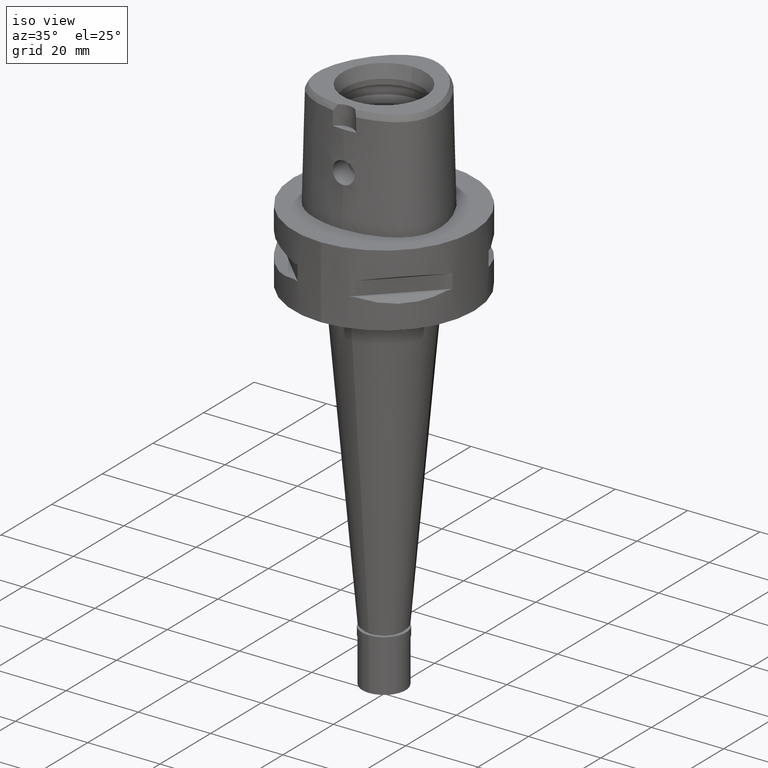
[diagram: clean part render]
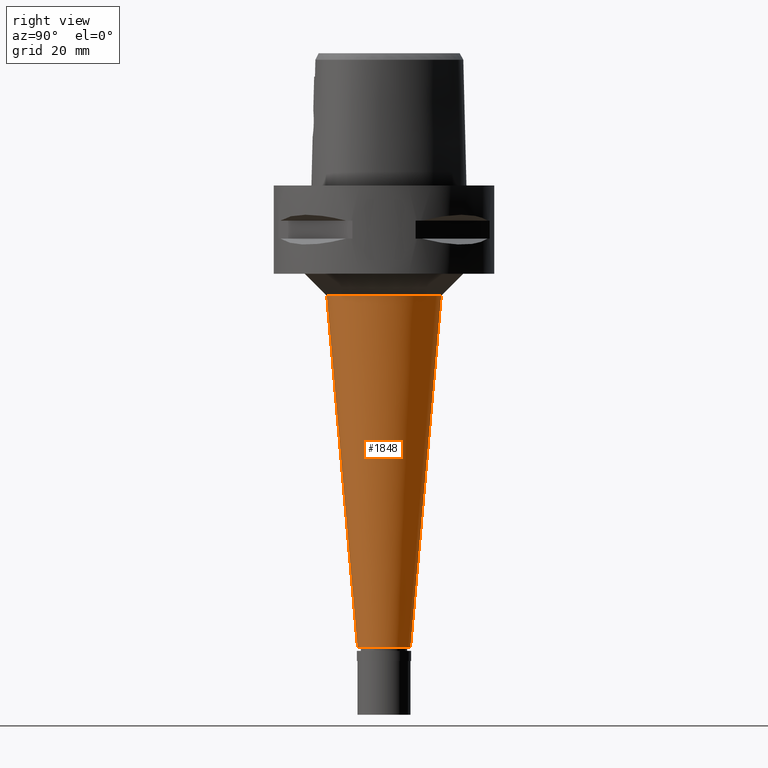
[diagram: tour spotlight — one face highlighted and labeled with its STEP entity id]
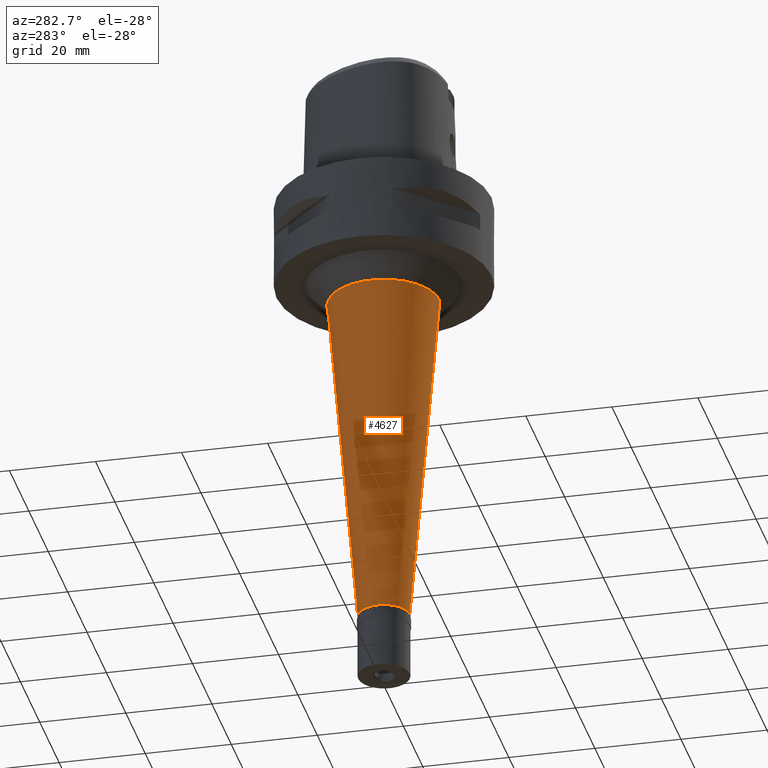
[diagram: tour spotlight — one face highlighted and labeled with its STEP entity id]
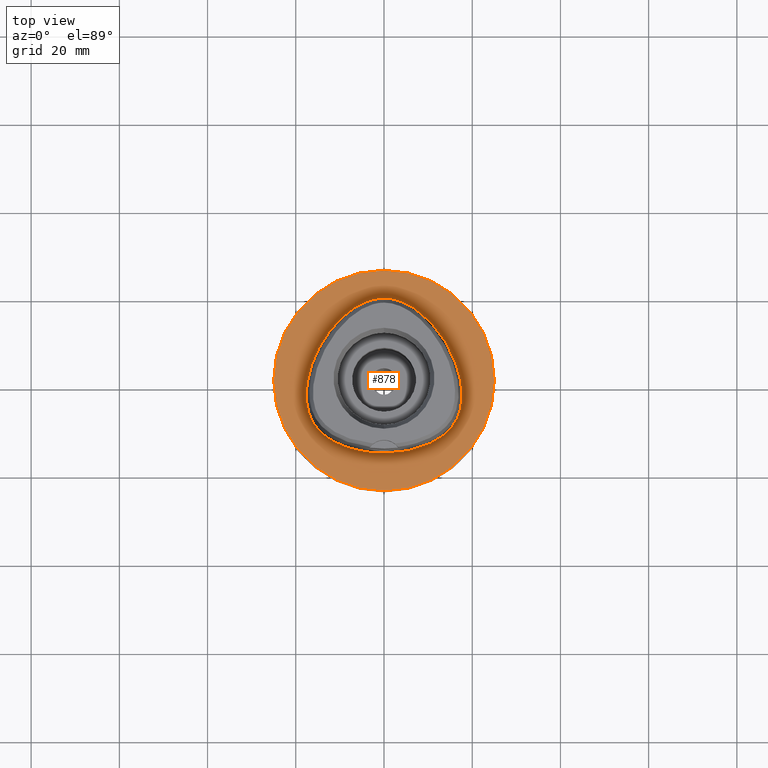
[diagram: tour spotlight — one face highlighted and labeled with its STEP entity id]
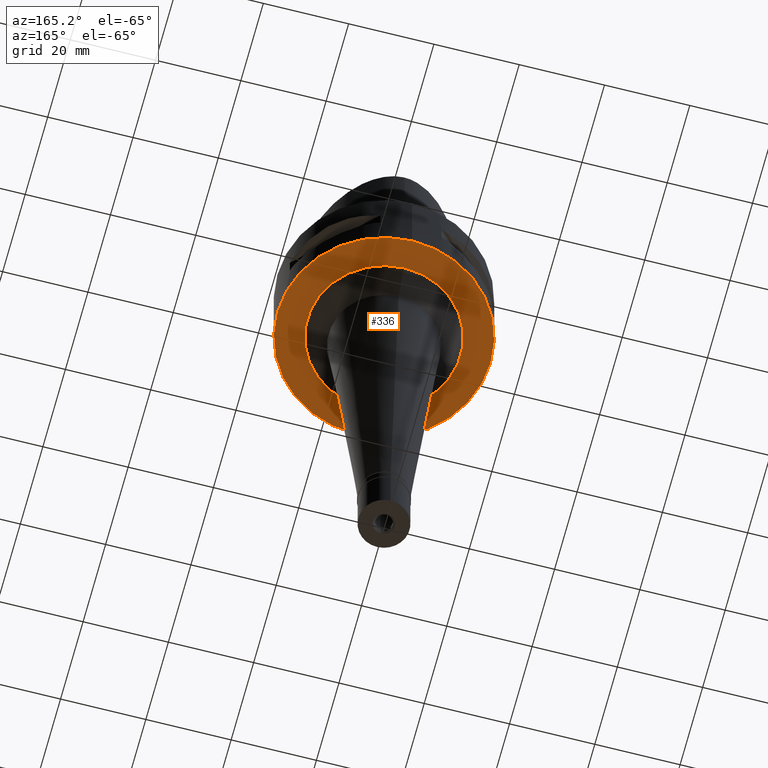
[diagram: tour spotlight — one face highlighted and labeled with its STEP entity id]
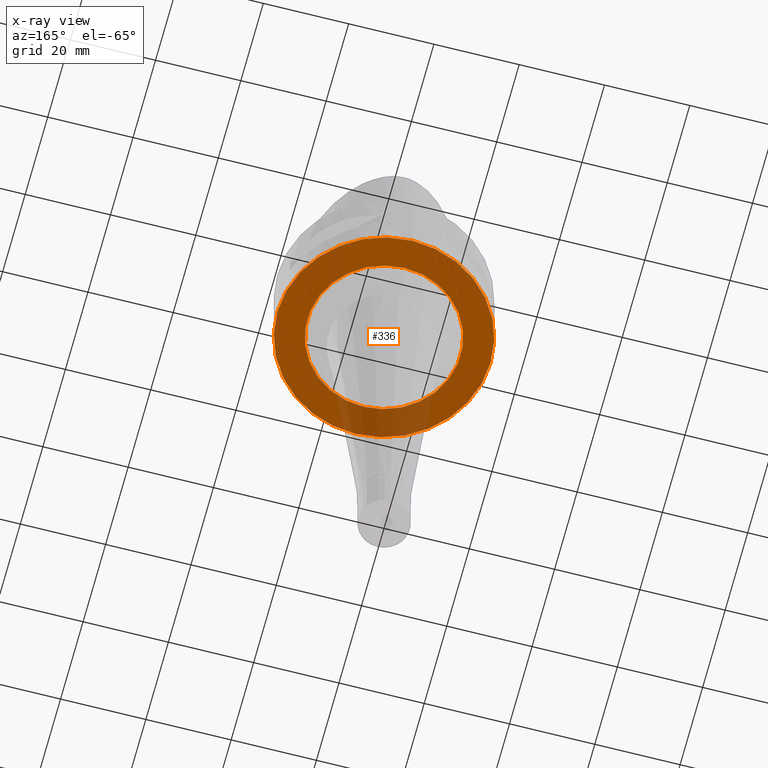
[diagram: x-ray of the same camera — body ghosted, this tour face saturated]
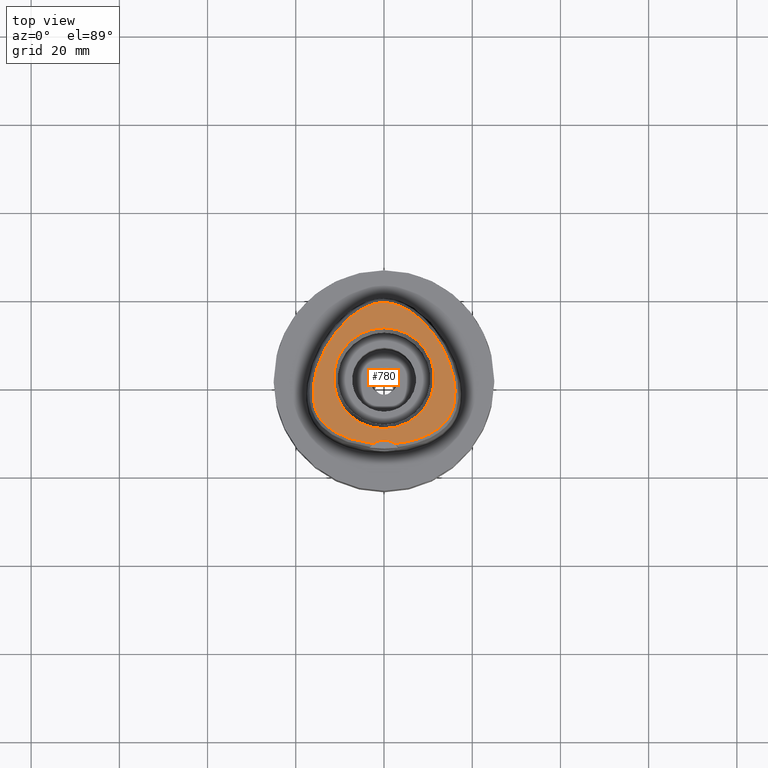
[diagram: tour spotlight — one face highlighted and labeled with its STEP entity id]
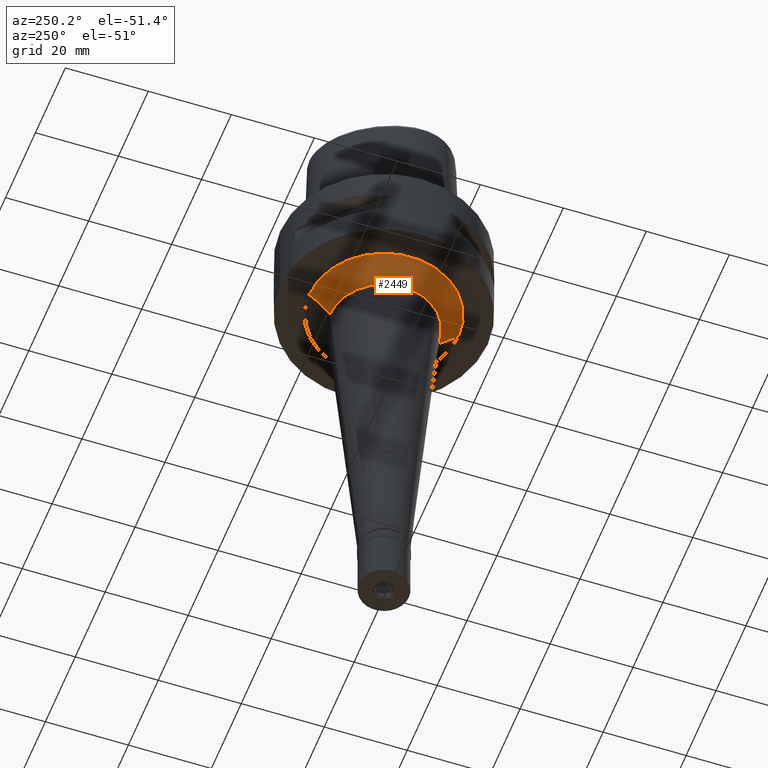
[diagram: tour spotlight — one face highlighted and labeled with its STEP entity id]
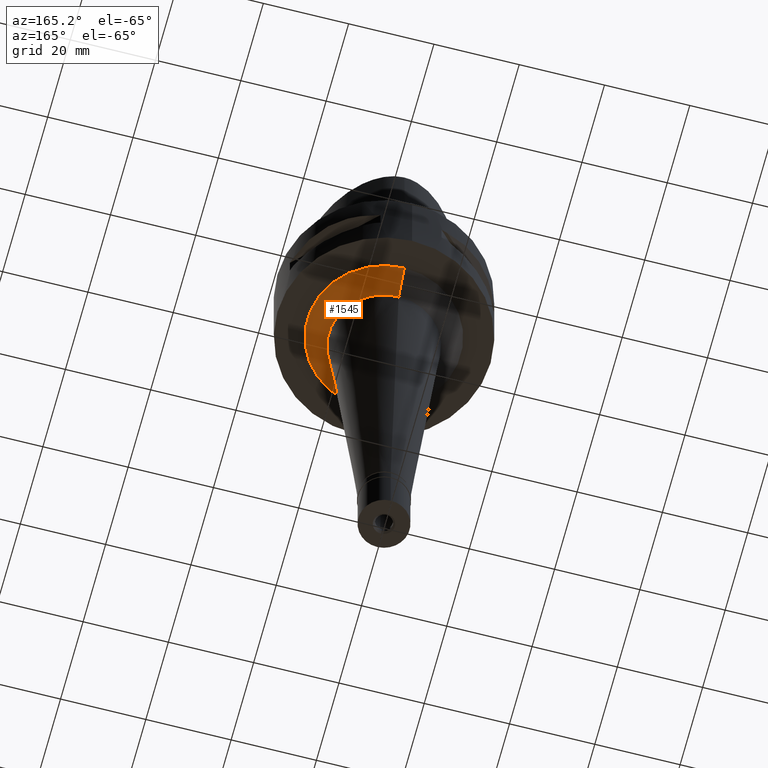
[diagram: tour spotlight — one face highlighted and labeled with its STEP entity id]
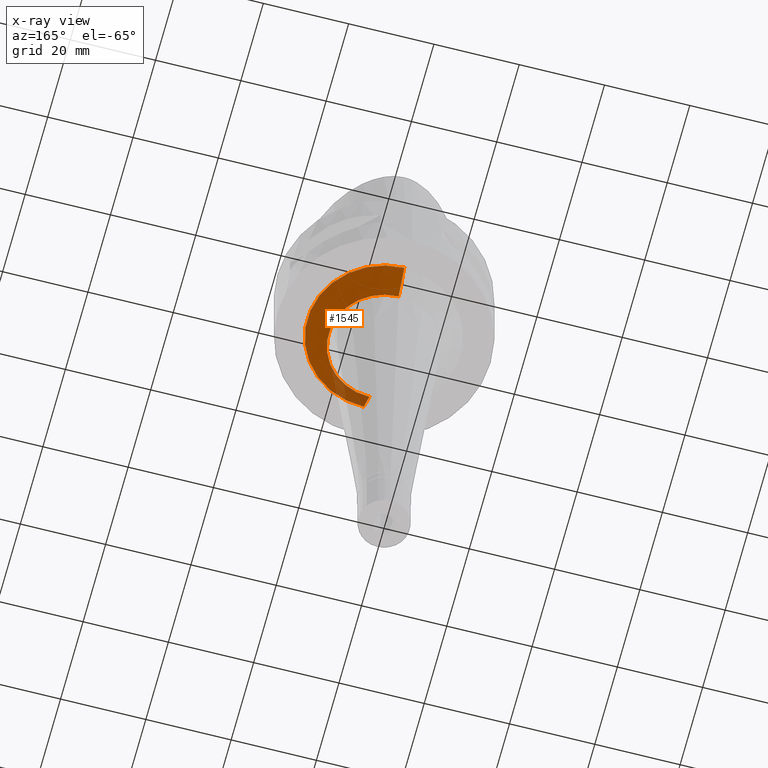
[diagram: x-ray of the same camera — body ghosted, this tour face saturated]
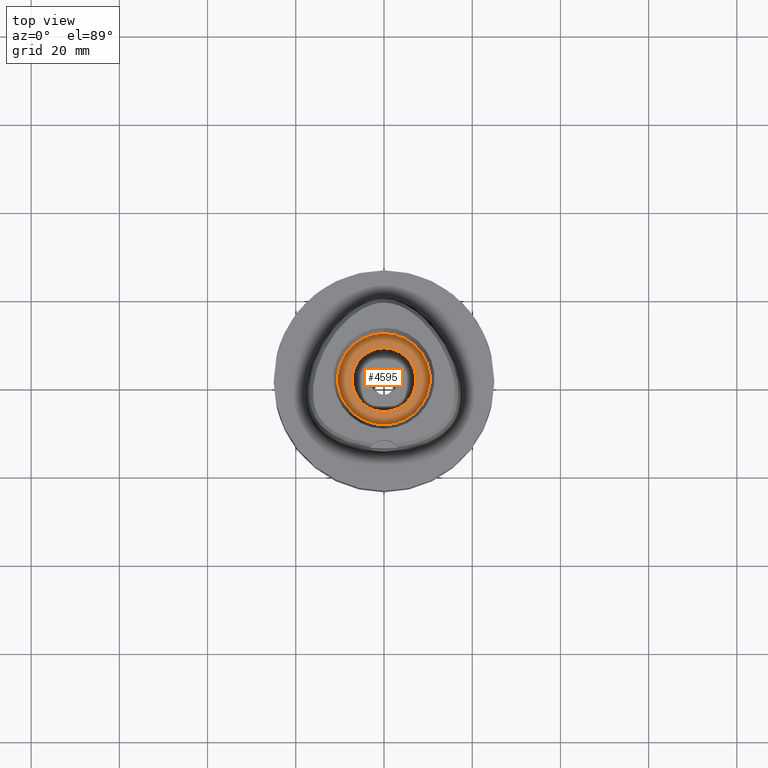
[diagram: tour spotlight — one face highlighted and labeled with its STEP entity id]
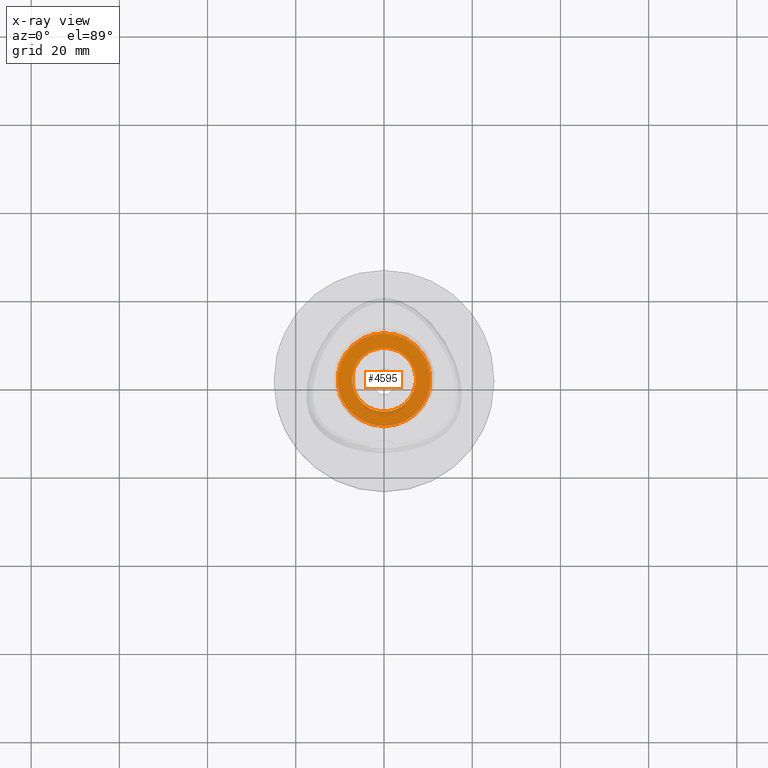
[diagram: x-ray of the same camera — body ghosted, this tour face saturated]
A machine part: a face-by-face anatomy tour. The part has 93 B-rep faces; the first image is the clean iso view, then the 8 largest visible faces are spotlighted one at a time (largest first), each with its STEP entity span.

Face 1 — right view, entity #1848. In plain terms, the highlighted conical surface has half-angle 5 deg.
Definition (entity closure, byte-faithful):
#159 = DIRECTION ( 'NONE',  ( 0.0000000000000000000, -1.000000000000000000, 0.0000000000000000000 ) ) ;
#301 = VECTOR ( 'NONE', #2188, 1000.000000000000000 ) ;
#485 = EDGE_CURVE ( 'NONE', #4478, #1376, #4431, .T. ) ;
#669 = VERTEX_POINT ( 'NONE', #3004 ) ;
#904 = ORIENTED_EDGE ( 'NONE', *, *, #3178, .F. ) ;
#1119 = AXIS2_PLACEMENT_3D ( 'NONE', #4689, #4671, #3247 ) ;
#1213 = FACE_OUTER_BOUND ( 'NONE', #4495, .T. ) ;
#1285 = ORIENTED_EDGE ( 'NONE', *, *, #3639, .F. ) ;
#1376 = VERTEX_POINT ( 'NONE', #2658 ) ;
#1802 = LINE ( 'NONE', #2504, #3945 ) ;
#1848 = ADVANCED_FACE ( 'NONE', ( #1213 ), #4131, .T. ) ;
#2141 = DIRECTION ( 'NONE',  ( 0.0000000000000000000, 0.08715574274767391716, -0.9961946980917442129 ) ) ;
#2188 = DIRECTION ( 'NONE',  ( 0.0000000000000000000, -0.08715574274767391716, -0.9961946980917442129 ) ) ;
#2246 = AXIS2_PLACEMENT_3D ( 'NONE', #4636, #3543, #159 ) ;
#2504 = CARTESIAN_POINT ( 'NONE',  ( 0.0000000000000000000, -12.98159534937000004, -25.00000000000000000 ) ) ;
#2658 = CARTESIAN_POINT ( 'NONE',  ( 0.0000000000000000000, 6.000000000000000000, -104.8000000000000114 ) ) ;
#2764 = DIRECTION ( 'NONE',  ( 0.0000000000000000000, 1.000000000000000000, 0.0000000000000000000 ) ) ;
#3004 = CARTESIAN_POINT ( 'NONE',  ( 0.0000000000000000000, 12.98159534937000004, -25.00000000000000000 ) ) ;
#3178 = EDGE_CURVE ( 'NONE', #4130, #669, #4390, .T. ) ;
#3247 = DIRECTION ( 'NONE',  ( 0.0000000000000000000, -1.000000000000000000, 0.0000000000000000000 ) ) ;
#3319 = ORIENTED_EDGE ( 'NONE', *, *, #3761, .T. ) ;
#3459 = CARTESIAN_POINT ( 'NONE',  ( 0.0000000000000000000, -6.000000000000000000, -104.8000000000000114 ) ) ;
#3543 = DIRECTION ( 'NONE',  ( 0.0000000000000000000, 0.0000000000000000000, 1.000000000000000000 ) ) ;
#3639 = EDGE_CURVE ( 'NONE', #669, #1376, #4766, .T. ) ;
#3761 = EDGE_CURVE ( 'NONE', #4130, #4478, #1802, .T. ) ;
#3891 = DIRECTION ( 'NONE',  ( 0.0000000000000000000, 0.0000000000000000000, 1.000000000000000000 ) ) ;
#3915 = CARTESIAN_POINT ( 'NONE',  ( 0.0000000000000000000, 0.0000000000000000000, -64.90000000000000568 ) ) ;
#3945 = VECTOR ( 'NONE', #2141, 1000.000000000000000 ) ;
#4053 = CARTESIAN_POINT ( 'NONE',  ( 0.0000000000000000000, 12.98159534937000004, -25.00000000000000000 ) ) ;
#4130 = VERTEX_POINT ( 'NONE', #4257 ) ;
#4131 = CONICAL_SURFACE ( 'NONE', #4664, 9.490797674683999929, 0.08726646259969973729 ) ;
#4257 = CARTESIAN_POINT ( 'NONE',  ( 0.0000000000000000000, -12.98159534937000004, -25.00000000000000000 ) ) ;
#4390 = CIRCLE ( 'NONE', #2246, 12.98159534937000004 ) ;
#4431 = CIRCLE ( 'NONE', #1119, 6.000000000000000000 ) ;
#4478 = VERTEX_POINT ( 'NONE', #3459 ) ;
#4495 = EDGE_LOOP ( 'NONE', ( #904, #3319, #4676, #1285 ) ) ;
#4636 = CARTESIAN_POINT ( 'NONE',  ( 0.0000000000000000000, 0.0000000000000000000, -25.00000000000000000 ) ) ;
#4664 = AXIS2_PLACEMENT_3D ( 'NONE', #3915, #3891, #2764 ) ;
#4671 = DIRECTION ( 'NONE',  ( 0.0000000000000000000, 0.0000000000000000000, 1.000000000000000000 ) ) ;
#4676 = ORIENTED_EDGE ( 'NONE', *, *, #485, .T. ) ;
#4689 = CARTESIAN_POINT ( 'NONE',  ( 0.0000000000000000000, 0.0000000000000000000, -104.8000000000000114 ) ) ;
#4766 = LINE ( 'NONE', #4053, #301 ) ;

Face 2 — auxiliary view, entity #4627. In plain terms, the highlighted conical surface has half-angle 5 deg.
Definition (entity closure, byte-faithful):
#44 = DIRECTION ( 'NONE',  ( 0.0000000000000000000, 1.000000000000000000, 0.0000000000000000000 ) ) ;
#61 = ORIENTED_EDGE ( 'NONE', *, *, #579, .T. ) ;
#296 = DIRECTION ( 'NONE',  ( 0.0000000000000000000, 0.0000000000000000000, -1.000000000000000000 ) ) ;
#301 = VECTOR ( 'NONE', #2188, 1000.000000000000000 ) ;
#437 = DIRECTION ( 'NONE',  ( 0.0000000000000000000, 0.0000000000000000000, 1.000000000000000000 ) ) ;
#579 = EDGE_CURVE ( 'NONE', #1376, #4478, #2435, .T. ) ;
#603 = ORIENTED_EDGE ( 'NONE', *, *, #3639, .T. ) ;
#669 = VERTEX_POINT ( 'NONE', #3004 ) ;
#725 = CIRCLE ( 'NONE', #4045, 12.98159534937000004 ) ;
#880 = FACE_OUTER_BOUND ( 'NONE', #3488, .T. ) ;
#1026 = AXIS2_PLACEMENT_3D ( 'NONE', #2908, #2209, #44 ) ;
#1376 = VERTEX_POINT ( 'NONE', #2658 ) ;
#1392 = DIRECTION ( 'NONE',  ( 0.0000000000000000000, -1.000000000000000000, 0.0000000000000000000 ) ) ;
#1517 = ORIENTED_EDGE ( 'NONE', *, *, #3761, .F. ) ;
#1673 = EDGE_CURVE ( 'NONE', #4130, #669, #725, .T. ) ;
#1741 = CARTESIAN_POINT ( 'NONE',  ( 0.0000000000000000000, 0.0000000000000000000, -25.00000000000000000 ) ) ;
#1802 = LINE ( 'NONE', #2504, #3945 ) ;
#2141 = DIRECTION ( 'NONE',  ( 0.0000000000000000000, 0.08715574274767391716, -0.9961946980917442129 ) ) ;
#2188 = DIRECTION ( 'NONE',  ( 0.0000000000000000000, -0.08715574274767391716, -0.9961946980917442129 ) ) ;
#2209 = DIRECTION ( 'NONE',  ( 0.0000000000000000000, 0.0000000000000000000, 1.000000000000000000 ) ) ;
#2356 = CARTESIAN_POINT ( 'NONE',  ( 0.0000000000000000000, 0.0000000000000000000, -64.90000000000000568 ) ) ;
#2435 = CIRCLE ( 'NONE', #1026, 6.000000000000000000 ) ;
#2504 = CARTESIAN_POINT ( 'NONE',  ( 0.0000000000000000000, -12.98159534937000004, -25.00000000000000000 ) ) ;
#2658 = CARTESIAN_POINT ( 'NONE',  ( 0.0000000000000000000, 6.000000000000000000, -104.8000000000000114 ) ) ;
#2908 = CARTESIAN_POINT ( 'NONE',  ( 0.0000000000000000000, 0.0000000000000000000, -104.8000000000000114 ) ) ;
#3004 = CARTESIAN_POINT ( 'NONE',  ( 0.0000000000000000000, 12.98159534937000004, -25.00000000000000000 ) ) ;
#3459 = CARTESIAN_POINT ( 'NONE',  ( 0.0000000000000000000, -6.000000000000000000, -104.8000000000000114 ) ) ;
#3488 = EDGE_LOOP ( 'NONE', ( #61, #1517, #3906, #603 ) ) ;
#3639 = EDGE_CURVE ( 'NONE', #669, #1376, #4766, .T. ) ;
#3761 = EDGE_CURVE ( 'NONE', #4130, #4478, #1802, .T. ) ;
#3823 = DIRECTION ( 'NONE',  ( 0.0000000000000000000, 1.000000000000000000, 0.0000000000000000000 ) ) ;
#3906 = ORIENTED_EDGE ( 'NONE', *, *, #1673, .T. ) ;
#3945 = VECTOR ( 'NONE', #2141, 1000.000000000000000 ) ;
#3950 = CONICAL_SURFACE ( 'NONE', #4488, 9.490797674683999929, 0.08726646259969973729 ) ;
#4045 = AXIS2_PLACEMENT_3D ( 'NONE', #1741, #296, #1392 ) ;
#4053 = CARTESIAN_POINT ( 'NONE',  ( 0.0000000000000000000, 12.98159534937000004, -25.00000000000000000 ) ) ;
#4130 = VERTEX_POINT ( 'NONE', #4257 ) ;
#4257 = CARTESIAN_POINT ( 'NONE',  ( 0.0000000000000000000, -12.98159534937000004, -25.00000000000000000 ) ) ;
#4478 = VERTEX_POINT ( 'NONE', #3459 ) ;
#4488 = AXIS2_PLACEMENT_3D ( 'NONE', #2356, #437, #3823 ) ;
#4627 = ADVANCED_FACE ( 'NONE', ( #880 ), #3950, .T. ) ;
#4766 = LINE ( 'NONE', #4053, #301 ) ;

Face 3 — top view, entity #878. In plain terms, the highlighted planar face has unit normal (0, 0, -1).
Definition (entity closure, byte-faithful):
#164 = CARTESIAN_POINT ( 'NONE',  ( 16.20602471963519164, -9.356552734374940172, 1.266890238549311931E-13 ) ) ;
#254 = CARTESIAN_POINT ( 'NONE',  ( 17.56373942933424104, -5.455996093750941078, 1.266890238549311931E-13 ) ) ;
#283 = DIRECTION ( 'NONE',  ( 0.0000000000000000000, 1.000000000000000000, 0.0000000000000000000 ) ) ;
#390 = CARTESIAN_POINT ( 'NONE',  ( -5.051093167672319417, -16.15562500055322559, -2.252703169944476891E-08 ) ) ;
#430 = CARTESIAN_POINT ( 'NONE',  ( 2.040572357694348860, 18.55015624999780854, 1.266890238549311931E-13 ) ) ;
#540 = DIRECTION ( 'NONE',  ( 0.0000000000000000000, 0.0000000000000000000, -1.000000000000000000 ) ) ;
#599 = VERTEX_POINT ( 'NONE', #782 ) ;
#620 = VERTEX_POINT ( 'NONE', #810 ) ;
#624 = CARTESIAN_POINT ( 'NONE',  ( 8.946741556185015654, -15.03902343750404569, 1.266890238549311931E-13 ) ) ;
#645 = ORIENTED_EDGE ( 'NONE', *, *, #1720, .F. ) ;
#671 = CARTESIAN_POINT ( 'NONE',  ( 1.683697722516158901, -16.45499999999859853, 1.266890238549311931E-13 ) ) ;
#782 = CARTESIAN_POINT ( 'NONE',  ( 6.327245226782000075E-11, 18.69499999997999851, 1.283047742124999982E-13 ) ) ;
#784 = CARTESIAN_POINT ( 'NONE',  ( -17.56373942988775738, -5.455996093829836191, -2.252703169944476891E-08 ) ) ;
#810 = CARTESIAN_POINT ( 'NONE',  ( 0.0000000000000000000, -25.00000000000000000, 0.0000000000000000000 ) ) ;
#860 = CARTESIAN_POINT ( 'NONE',  ( 0.0000000000000000000, 25.00000000000000000, 0.0000000000000000000 ) ) ;
#878 = ADVANCED_FACE ( 'NONE', ( #1241, #3054 ), #2305, .F. ) ;
#995 = CARTESIAN_POINT ( 'NONE',  ( 0.0000000000000000000, 1.295676313497999978E-14, 0.0000000000000000000 ) ) ;
#1043 = EDGE_CURVE ( 'NONE', #3849, #620, #2961, .T. ) ;
#1074 = DIRECTION ( 'NONE',  ( 0.0000000000000000000, -1.000000000000000000, 0.0000000000000000000 ) ) ;
#1095 = CARTESIAN_POINT ( 'NONE',  ( -0.6801907859079586727, 18.69500000056697431, -2.252703169944476891E-08 ) ) ;
#1124 = CARTESIAN_POINT ( 'NONE',  ( -16.51672824833155317, 3.703437500192405363, -2.252703169944476891E-08 ) ) ;
#1172 = CARTESIAN_POINT ( 'NONE',  ( -1.463759547442000055E-11, -16.45500000000000185, 1.294890121053999835E-13 ) ) ;
#1241 = FACE_OUTER_BOUND ( 'NONE', #4215, .T. ) ;
#1387 = CARTESIAN_POINT ( 'NONE',  ( 0.0000000000000000000, 1.295676313497999978E-14, 0.0000000000000000000 ) ) ;
#1399 = DIRECTION ( 'NONE',  ( 0.0000000000000000000, 0.0000000000000000000, -1.000000000000000000 ) ) ;
#1431 = ORIENTED_EDGE ( 'NONE', *, *, #1043, .F. ) ;
#1476 = CARTESIAN_POINT ( 'NONE',  ( -16.20602472013149509, -9.356552734657469728, -2.252703169944476891E-08 ) ) ;
#1492 = CARTESIAN_POINT ( 'NONE',  ( 16.51672824780402138, 3.703437499999786997, 1.266890238549311931E-13 ) ) ;
#1508 = CARTESIAN_POINT ( 'NONE',  ( -8.946741556378418281, -15.03902343803171426, -2.252703169944476891E-08 ) ) ;
#1526 = VERTEX_POINT ( 'NONE', #4170 ) ;
#1720 = EDGE_CURVE ( 'NONE', #1526, #599, #3925, .T. ) ;
#1820 = CARTESIAN_POINT ( 'NONE',  ( -2.040572357783139612, 18.55015625055378337, -2.252703169944476891E-08 ) ) ;
#1887 = B_SPLINE_CURVE_WITH_KNOTS ( 'NONE', 3,
 ( #2604, #1095, #1820, #3317, #2232, #3621, #2652, #1124, #3647, #4781, #784, #3696, #2909, #1476, #3723, #2957, #4070, #3368, #1508, #390, #4758, #1172 ),
 .UNSPECIFIED., .F., .F.,
 ( 4, 1, 1, 1, 1, 1, 1, 1, 1, 1, 1, 1, 1, 1, 1, 1, 1, 1, 1, 4 ),
 ( 0.0000000000000000000, 0.04166666666790999618, 0.08333333333452000447, 0.1666666666678000008, 0.2500000000009999779, 0.3333333333342000104, 0.4166666666675000186, 0.5000000000006999956, 0.5416666666673000119, 0.5833333333339000282, 0.6250000000005000445, 0.6458333333337999971, 0.6666666666671999808, 0.6875000000005000445, 0.7083333333336999660, 0.7500000000004000134, 0.7916666666670000296, 0.8333333333336000459, 0.9166666666668999985, 1.000000000000000000 ),
 .UNSPECIFIED. ) ;
#1942 = EDGE_LOOP ( 'NONE', ( #2235, #645 ) ) ;
#2012 = CARTESIAN_POINT ( 'NONE',  ( 14.78833380399962216, -11.28232910156654611, 1.266890238549311931E-13 ) ) ;
#2101 = CARTESIAN_POINT ( 'NONE',  ( 16.66912842139748818, -8.445800781250113687, 1.266890238549311931E-13 ) ) ;
#2113 = EDGE_CURVE ( 'NONE', #599, #1526, #1887, .T. ) ;
#2165 = CIRCLE ( 'NONE', #3400, 25.00000000000000000 ) ;
#2194 = CARTESIAN_POINT ( 'NONE',  ( 17.49754712306940618, -0.2285937500000930489, 1.266890238549311931E-13 ) ) ;
#2232 = CARTESIAN_POINT ( 'NONE',  ( -7.967839664576181313, 15.83070312544430536, -2.252703169944476891E-08 ) ) ;
#2235 = ORIENTED_EDGE ( 'NONE', *, *, #2113, .F. ) ;
#2295 = CARTESIAN_POINT ( 'NONE',  ( 4.728927206815265905, 17.73480468749866290, 1.266890238549311931E-13 ) ) ;
#2305 = PLANE ( 'NONE',  #3198 ) ;
#2359 = CARTESIAN_POINT ( 'NONE',  ( 0.0000000000000000000, 1.224646799146999965E-14, 0.0000000000000000000 ) ) ;
#2395 = ORIENTED_EDGE ( 'NONE', *, *, #3700, .F. ) ;
#2485 = CARTESIAN_POINT ( 'NONE',  ( 5.051093167571571563, -16.15562500000254431, 1.266890238549311931E-13 ) ) ;
#2604 = CARTESIAN_POINT ( 'NONE',  ( 6.327245226782000075E-11, 18.69499999997999851, 1.283047742124999982E-13 ) ) ;
#2636 = CARTESIAN_POINT ( 'NONE',  ( 17.71143735561749111, -3.269218750000518980, 1.266890238549311931E-13 ) ) ;
#2652 = CARTESIAN_POINT ( 'NONE',  ( -14.38008119738573143, 8.302343750282300761, -2.252703169944476891E-08 ) ) ;
#2664 = CARTESIAN_POINT ( 'NONE',  ( 14.38008119689788167, 8.302343749999957723, 1.266890238549311931E-13 ) ) ;
#2909 = CARTESIAN_POINT ( 'NONE',  ( -16.66912842190886224, -8.445800781479288588, -2.252703169944476891E-08 ) ) ;
#2957 = CARTESIAN_POINT ( 'NONE',  ( -14.78833380441265177, -11.28232910194992478, -2.252703169944476891E-08 ) ) ;
#2961 = CIRCLE ( 'NONE', #3811, 25.00000000000000000 ) ;
#2970 = CARTESIAN_POINT ( 'NONE',  ( 11.46563508023672640, 12.45218749999961005, 1.266890238549311931E-13 ) ) ;
#3054 = FACE_BOUND ( 'NONE', #1942, .T. ) ;
#3198 = AXIS2_PLACEMENT_3D ( 'NONE', #2359, #540, #4217 ) ;
#3232 = DIRECTION ( 'NONE',  ( 0.0000000000000000000, 0.0000000000000000000, -1.000000000000000000 ) ) ;
#3317 = CARTESIAN_POINT ( 'NONE',  ( -4.728927207058283955, 17.73480468801015064, -2.252703169944476891E-08 ) ) ;
#3368 = CARTESIAN_POINT ( 'NONE',  ( -11.68694516611753009, -13.70394531299874963, -2.252703169944476891E-08 ) ) ;
#3377 = CARTESIAN_POINT ( 'NONE',  ( 6.327245226782000075E-11, 18.69499999997999851, 1.283047742124999982E-13 ) ) ;
#3400 = AXIS2_PLACEMENT_3D ( 'NONE', #1387, #3232, #1074 ) ;
#3483 = CARTESIAN_POINT ( 'NONE',  ( 15.64884224256346812, -10.21298828125385505, 1.266890238549311931E-13 ) ) ;
#3565 = CARTESIAN_POINT ( 'NONE',  ( 17.16495051780308145, -7.165908203125037623, 1.266890238549311931E-13 ) ) ;
#3621 = CARTESIAN_POINT ( 'NONE',  ( -11.46563508066128989, 12.45218750037066258, -2.252703169944476891E-08 ) ) ;
#3647 = CARTESIAN_POINT ( 'NONE',  ( -17.49754712363003506, -0.2285937499011347351, -2.252703169944476891E-08 ) ) ;
#3696 = CARTESIAN_POINT ( 'NONE',  ( -17.16495051834907315, -7.165908203285286326, -2.252703169944476891E-08 ) ) ;
#3700 = EDGE_CURVE ( 'NONE', #620, #3849, #2165, .T. ) ;
#3710 = CARTESIAN_POINT ( 'NONE',  ( 0.6801907859354098251, 18.69499999999559847, 1.266890238549311931E-13 ) ) ;
#3723 = CARTESIAN_POINT ( 'NONE',  ( -15.64884224301975024, -10.21298828158365524, -2.252703169944476891E-08 ) ) ;
#3811 = AXIS2_PLACEMENT_3D ( 'NONE', #995, #1399, #283 ) ;
#3849 = VERTEX_POINT ( 'NONE', #860 ) ;
#3850 = CARTESIAN_POINT ( 'NONE',  ( 13.50690093480192822, -12.48264648437981528, 1.266890238549311931E-13 ) ) ;
#3925 = B_SPLINE_CURVE_WITH_KNOTS ( 'NONE', 3,
 ( #3981, #671, #2485, #624, #4720, #3850, #2012, #3483, #164, #2101, #3565, #254, #2636, #2194, #1492, #2664, #2970, #4440, #2295, #430, #3710, #3377 ),
 .UNSPECIFIED., .F., .F.,
 ( 4, 1, 1, 1, 1, 1, 1, 1, 1, 1, 1, 1, 1, 1, 1, 1, 1, 1, 1, 4 ),
 ( 0.0000000000000000000, 0.08333333333346000515, 0.1666666666667000196, 0.2083333333333000081, 0.2499999999998999967, 0.2916666666666000163, 0.3124999999997999933, 0.3333333333331000015, 0.3541666666665000407, 0.3749999999996999622, 0.4166666666664000096, 0.4583333333328999948, 0.4999999999995999866, 0.5833333333328000192, 0.6666666666660999718, 0.7499999999993000044, 0.8333333333324000058, 0.9166666666657000695, 0.9583333333322999747, 1.000000000000000000 ),
 .UNSPECIFIED. ) ;
#3981 = CARTESIAN_POINT ( 'NONE',  ( -1.463759547442000055E-11, -16.45500000000000185, 1.294890121053999835E-13 ) ) ;
#4070 = CARTESIAN_POINT ( 'NONE',  ( -13.50690093514876011, -12.48264648482576433, -2.252703169944476891E-08 ) ) ;
#4170 = CARTESIAN_POINT ( 'NONE',  ( -1.463759547442000055E-11, -16.45500000000000185, 1.294890121053999835E-13 ) ) ;
#4215 = EDGE_LOOP ( 'NONE', ( #1431, #2395 ) ) ;
#4217 = DIRECTION ( 'NONE',  ( 0.0000000000000000000, -1.000000000000000000, 0.0000000000000000000 ) ) ;
#4440 = CARTESIAN_POINT ( 'NONE',  ( 7.967839664224537266, 15.83070312499691035, 1.266890238549311931E-13 ) ) ;
#4720 = CARTESIAN_POINT ( 'NONE',  ( 11.68694516583672716, -13.70394531250057213, 1.266890238549311931E-13 ) ) ;
#4758 = CARTESIAN_POINT ( 'NONE',  ( -1.683697722561884103, -16.45500000056451384, -2.252703169944476891E-08 ) ) ;
#4781 = CARTESIAN_POINT ( 'NONE',  ( -17.71143735617546255, -3.269218749996134932, -2.252703169944476891E-08 ) ) ;

Face 4 — auxiliary view, entity #336. An x-ray twin of the same camera follows (body ghosted, this face saturated) — the face is partly hidden behind the body. In plain terms, the highlighted planar face has unit normal (0, 0, -1).
Definition (entity closure, byte-faithful):
#42 = CARTESIAN_POINT ( 'NONE',  ( 0.0000000000000000000, 1.295676313497999978E-14, -20.00000000000000000 ) ) ;
#212 = ORIENTED_EDGE ( 'NONE', *, *, #4270, .F. ) ;
#336 = ADVANCED_FACE ( 'NONE', ( #839, #1405 ), #2441, .T. ) ;
#366 = EDGE_CURVE ( 'NONE', #1269, #4712, #1739, .T. ) ;
#409 = CARTESIAN_POINT ( 'NONE',  ( 0.0000000000000000000, 17.98159534937000004, -20.00000000000000000 ) ) ;
#471 = AXIS2_PLACEMENT_3D ( 'NONE', #42, #732, #3268 ) ;
#615 = CARTESIAN_POINT ( 'NONE',  ( 0.0000000000000000000, 0.0000000000000000000, -20.00000000000000000 ) ) ;
#732 = DIRECTION ( 'NONE',  ( 0.0000000000000000000, 0.0000000000000000000, 1.000000000000000000 ) ) ;
#807 = CARTESIAN_POINT ( 'NONE',  ( 0.0000000000000000000, 1.295676313497999978E-14, -20.00000000000000000 ) ) ;
#839 = FACE_OUTER_BOUND ( 'NONE', #3493, .T. ) ;
#896 = AXIS2_PLACEMENT_3D ( 'NONE', #615, #2884, #2157 ) ;
#948 = DIRECTION ( 'NONE',  ( 0.0000000000000000000, 0.0000000000000000000, -1.000000000000000000 ) ) ;
#1014 = AXIS2_PLACEMENT_3D ( 'NONE', #807, #4596, #3076 ) ;
#1020 = DIRECTION ( 'NONE',  ( 0.0000000000000000000, 1.000000000000000000, 0.0000000000000000000 ) ) ;
#1028 = VERTEX_POINT ( 'NONE', #2132 ) ;
#1269 = VERTEX_POINT ( 'NONE', #409 ) ;
#1405 = FACE_BOUND ( 'NONE', #4543, .T. ) ;
#1691 = CARTESIAN_POINT ( 'NONE',  ( 0.0000000000000000000, 0.0000000000000000000, -20.00000000000000000 ) ) ;
#1739 = CIRCLE ( 'NONE', #3581, 17.98159534937000004 ) ;
#1935 = EDGE_CURVE ( 'NONE', #4712, #1269, #4589, .T. ) ;
#2046 = AXIS2_PLACEMENT_3D ( 'NONE', #1691, #948, #4614 ) ;
#2099 = CIRCLE ( 'NONE', #1014, 25.00000000000000000 ) ;
#2132 = CARTESIAN_POINT ( 'NONE',  ( 0.0000000000000000000, -25.00000000000000000, -20.00000000000000000 ) ) ;
#2157 = DIRECTION ( 'NONE',  ( 0.0000000000000000000, -1.000000000000000000, 0.0000000000000000000 ) ) ;
#2441 = PLANE ( 'NONE',  #896 ) ;
#2451 = ORIENTED_EDGE ( 'NONE', *, *, #1935, .F. ) ;
#2536 = CARTESIAN_POINT ( 'NONE',  ( 0.0000000000000000000, -17.98159534937000004, -20.00000000000000000 ) ) ;
#2712 = VERTEX_POINT ( 'NONE', #4729 ) ;
#2884 = DIRECTION ( 'NONE',  ( 0.0000000000000000000, 0.0000000000000000000, -1.000000000000000000 ) ) ;
#3076 = DIRECTION ( 'NONE',  ( 0.0000000000000000000, -1.000000000000000000, 0.0000000000000000000 ) ) ;
#3268 = DIRECTION ( 'NONE',  ( 0.0000000000000000000, 1.000000000000000000, 0.0000000000000000000 ) ) ;
#3298 = ORIENTED_EDGE ( 'NONE', *, *, #4472, .F. ) ;
#3485 = CIRCLE ( 'NONE', #471, 25.00000000000000000 ) ;
#3493 = EDGE_LOOP ( 'NONE', ( #212, #3298 ) ) ;
#3581 = AXIS2_PLACEMENT_3D ( 'NONE', #3973, #3927, #1020 ) ;
#3927 = DIRECTION ( 'NONE',  ( 0.0000000000000000000, 0.0000000000000000000, -1.000000000000000000 ) ) ;
#3973 = CARTESIAN_POINT ( 'NONE',  ( 0.0000000000000000000, 0.0000000000000000000, -20.00000000000000000 ) ) ;
#4270 = EDGE_CURVE ( 'NONE', #2712, #1028, #3485, .T. ) ;
#4472 = EDGE_CURVE ( 'NONE', #1028, #2712, #2099, .T. ) ;
#4521 = ORIENTED_EDGE ( 'NONE', *, *, #366, .F. ) ;
#4543 = EDGE_LOOP ( 'NONE', ( #4521, #2451 ) ) ;
#4589 = CIRCLE ( 'NONE', #2046, 17.98159534937000004 ) ;
#4596 = DIRECTION ( 'NONE',  ( 0.0000000000000000000, 0.0000000000000000000, 1.000000000000000000 ) ) ;
#4614 = DIRECTION ( 'NONE',  ( 0.0000000000000000000, -1.000000000000000000, 0.0000000000000000000 ) ) ;
#4712 = VERTEX_POINT ( 'NONE', #2536 ) ;
#4729 = CARTESIAN_POINT ( 'NONE',  ( 0.0000000000000000000, 25.00000000000000000, -20.00000000000000000 ) ) ;

Face 5 — top view, entity #780. In plain terms, the highlighted planar face has unit normal (0, 0, 1).
Definition (entity closure, byte-faithful):
#4 = CARTESIAN_POINT ( 'NONE',  ( -9.750168658358866480, -12.92810664733624471, 29.99999999999975486 ) ) ;
#9 = CARTESIAN_POINT ( 'NONE',  ( 15.51702143705434445, -7.148634146070255824, 29.99999999999529976 ) ) ;
#37 = CARTESIAN_POINT ( 'NONE',  ( -6.303691439121000273E-11, 17.15328888647999861, 30.00000000000000000 ) ) ;
#39 = CARTESIAN_POINT ( 'NONE',  ( 3.078265684543895819, 16.60532678263224682, 29.99999999999934630 ) ) ;
#80 = CARTESIAN_POINT ( 'NONE',  ( -0.5679008307149224777, 17.14013367087309447, 29.99999999999387512 ) ) ;
#96 = CARTESIAN_POINT ( 'NONE',  ( -6.303691439121000273E-11, 17.15328888647999861, 30.00000000000000000 ) ) ;
#129 = CARTESIAN_POINT ( 'NONE',  ( -1.772880577021780812, 16.97196055715948049, 29.99999999999553779 ) ) ;
#165 = DIRECTION ( 'NONE',  ( 1.000000000000000000, 0.0000000000000000000, 0.0000000000000000000 ) ) ;
#194 = VERTEX_POINT ( 'NONE', #1591 ) ;
#221 = CARTESIAN_POINT ( 'NONE',  ( 0.0000000000000000000, 1.570614979474999723E-14, 30.00000000000000000 ) ) ;
#260 = AXIS2_PLACEMENT_3D ( 'NONE', #221, #661, #1045 ) ;
#280 = CARTESIAN_POINT ( 'NONE',  ( -15.71065119878993421, -6.536303815289310926, 29.99999999999440092 ) ) ;
#299 = CARTESIAN_POINT ( 'NONE',  ( -13.18915979441350217, -10.65722997876278733, 29.99999999999581846 ) ) ;
#303 = CARTESIAN_POINT ( 'NONE',  ( 13.38374903490799639, 6.636915464739649551, 30.00000000000790124 ) ) ;
#324 = CARTESIAN_POINT ( 'NONE',  ( -13.66338899148611574, -10.18351204678590172, 29.99999999999864997 ) ) ;
#354 = CARTESIAN_POINT ( 'NONE',  ( -11.92713521269310917, 9.060544494663155035, 29.99999999999641886 ) ) ;
#357 = CARTESIAN_POINT ( 'NONE',  ( 15.68929135223772953, 0.4919393172820291649, 29.99999999999933920 ) ) ;
#360 = EDGE_CURVE ( 'NONE', #664, #194, #3432, .T. ) ;
#371 = CARTESIAN_POINT ( 'NONE',  ( 12.04928217776346422, -11.59002493206811124, 29.99999999999876721 ) ) ;
#379 = CARTESIAN_POINT ( 'NONE',  ( -16.12543283908635772, -3.535877041748166416, 30.00000000000415668 ) ) ;
#432 = CARTESIAN_POINT ( 'NONE',  ( -0.1909045559980127038, 17.15328888648249972, 29.99999999999878142 ) ) ;
#507 = B_SPLINE_CURVE_WITH_KNOTS ( 'NONE', 3,
 ( #1463, #4382, #4771, #4746, #3613, #1035, #2534, #2514, #4, #3240, #1417, #1857, #3662, #299, #324, #4699, #3332, #694, #1787, #2946, #2898, #280, #673, #4059, #1494, #379, #4411, #1082, #4442, #2196, #2149, #1137, #4723, #3286, #2171, #1765, #354, #2561, #3637, #748, #1811, #2973, #2616, #770, #1442, #3594, #4031, #720, #1834, #129, #2709, #80, #432, #37 ),
 .UNSPECIFIED., .F., .F.,
 ( 4, 1, 1, 1, 1, 1, 1, 1, 1, 1, 1, 1, 1, 1, 1, 1, 1, 1, 1, 1, 1, 1, 1, 1, 1, 1, 1, 1, 1, 1, 1, 1, 1, 1, 1, 1, 1, 1, 1, 1, 1, 1, 1, 1, 1, 1, 1, 1, 1, 1, 1, 4 ),
 ( 0.0000000000000000000, 0.005566907331700066131, 0.02545556918509994659, 0.04534423103860008020, 0.06523289289190004059, 0.08512155474529992105, 0.1050102165987000236, 0.1248988784521999351, 0.1447875403055000065, 0.1646762021588999980, 0.1845648640122999895, 0.2044535258655999499, 0.2243421877191000835, 0.2442308495724999640, 0.2641195114257999244, 0.2840081732792000269, 0.3038968351325999073, 0.3237854969860000098, 0.3436741588394000013, 0.3635628206927999928, 0.3834514825461999843, 0.4033401443995000557, 0.4232288062529999673, 0.4431174681064000698, 0.4630061299597000302, 0.4828947918130999106, 0.5027834536666000442, 0.5226721155199000046, 0.5425607773732999961, 0.5624494392267000986, 0.5823381010799999480, 0.6022267629334999706, 0.6221154247869000731, 0.6420040866403000646, 0.6618927484936000250, 0.6817814103470000164, 0.7016700722005000390, 0.7215587340537999994, 0.7414473959071999909, 0.7613360577605999824, 0.7812247196139999739, 0.8011133814673999654, 0.8210020433207999568, 0.8408907051741000283, 0.8607793670275000197, 0.8806680288810000423, 0.9005566907343299787, 0.9204453525877199782, 0.9403340144411099777, 0.9602226762944999772, 0.9801113381478899766, 1.000000000000000000 ),
 .UNSPECIFIED. ) ;
#573 = AXIS2_PLACEMENT_3D ( 'NONE', #3826, #3484, #165 ) ;
#661 = DIRECTION ( 'NONE',  ( 0.0000000000000000000, 0.0000000000000000000, 1.000000000000000000 ) ) ;
#664 = VERTEX_POINT ( 'NONE', #757 ) ;
#673 = CARTESIAN_POINT ( 'NONE',  ( -15.87300767660060075, -5.872112237378923183, 30.00000000000161648 ) ) ;
#676 = CARTESIAN_POINT ( 'NONE',  ( 9.420872132874700711, 12.20574557692616047, 30.00000000000184741 ) ) ;
#694 = CARTESIAN_POINT ( 'NONE',  ( -14.76322153899807965, -8.744676018998095657, 29.99999999999673861 ) ) ;
#699 = CARTESIAN_POINT ( 'NONE',  ( 5.258649622039821558, 15.58603480843183497, 30.00000000000397193 ) ) ;
#711 = CARTESIAN_POINT ( 'NONE',  ( 2.538962679605456518, -14.79292722369524959, 30.00000000000298073 ) ) ;
#720 = CARTESIAN_POINT ( 'NONE',  ( -3.077178008231346240, 16.60571267458161770, 30.00000000000361666 ) ) ;
#748 = CARTESIAN_POINT ( 'NONE',  ( -9.420854217683539034, 12.20577134109779749, 29.99999999999673861 ) ) ;
#751 = CARTESIAN_POINT ( 'NONE',  ( 15.99982784345678155, -5.151471542955309957, 29.99999999999679900 ) ) ;
#757 = CARTESIAN_POINT ( 'NONE',  ( 0.0000000000000000000, -11.43758326592000074, 30.00000000000000000 ) ) ;
#770 = CARTESIAN_POINT ( 'NONE',  ( -6.047371482395665687, 15.09400374235349851, 29.99999999999559819 ) ) ;
#780 = ADVANCED_FACE ( 'NONE', ( #4500, #1196 ), #1966, .T. ) ;
#803 = CARTESIAN_POINT ( 'NONE',  ( 14.76450668991030390, -8.742560395151283359, 30.00000000000152767 ) ) ;
#856 = DIRECTION ( 'NONE',  ( 0.0000000000000000000, 1.000000000000000000, 0.0000000000000000000 ) ) ;
#914 = EDGE_CURVE ( 'NONE', #194, #664, #4420, .T. ) ;
#933 = ORIENTED_EDGE ( 'NONE', *, *, #3444, .F. ) ;
#973 = EDGE_LOOP ( 'NONE', ( #1037, #933, #1142 ) ) ;
#1035 = CARTESIAN_POINT ( 'NONE',  ( -6.650243356160426167, -14.05992414833709070, 30.00000000000564171 ) ) ;
#1037 = ORIENTED_EDGE ( 'NONE', *, *, #1312, .F. ) ;
#1045 = DIRECTION ( 'NONE',  ( 0.0000000000000000000, -1.000000000000000000, 0.0000000000000000000 ) ) ;
#1082 = CARTESIAN_POINT ( 'NONE',  ( -16.04083576397309585, -1.656498942829526699, 29.99999999999716849 ) ) ;
#1116 = CARTESIAN_POINT ( 'NONE',  ( 8.557117433367480430, 13.07415149353060180, 30.00000000000443734 ) ) ;
#1130 = CARTESIAN_POINT ( 'NONE',  ( 12.65514534656518641, -11.12483370674493699, 30.00000000000744649 ) ) ;
#1137 = CARTESIAN_POINT ( 'NONE',  ( -15.02099409651190953, 2.867135356160185111, 30.00000000000098410 ) ) ;
#1142 = ORIENTED_EDGE ( 'NONE', *, *, #2772, .F. ) ;
#1164 = CARTESIAN_POINT ( 'NONE',  ( 14.08238499152025547, -9.704590128438766783, 29.99999999999604938 ) ) ;
#1196 = FACE_BOUND ( 'NONE', #2612, .T. ) ;
#1312 = EDGE_CURVE ( 'NONE', #1584, #2009, #2377, .T. ) ;
#1417 = CARTESIAN_POINT ( 'NONE',  ( -11.36350786442219807, -12.05063008427935678, 29.99999999999495159 ) ) ;
#1442 = CARTESIAN_POINT ( 'NONE',  ( -5.257871200567935333, 15.58649213537116651, 29.99999999999723244 ) ) ;
#1445 = CARTESIAN_POINT ( 'NONE',  ( 7.700998872106796789, 13.84384558891252048, 30.00000000000345679 ) ) ;
#1463 = CARTESIAN_POINT ( 'NONE',  ( -2.406542353497000075, -14.80491723099000012, 30.00000000000000000 ) ) ;
#1494 = CARTESIAN_POINT ( 'NONE',  ( -16.08550869467269351, -4.376322360225803898, 29.99999999999931788 ) ) ;
#1501 = CARTESIAN_POINT ( 'NONE',  ( 4.499552315896043986, 15.99769543814621287, 29.99999999999912603 ) ) ;
#1515 = CARTESIAN_POINT ( 'NONE',  ( 2.406543924163999648, -14.80491841401999942, 30.00000000000000000 ) ) ;
#1538 = CARTESIAN_POINT ( 'NONE',  ( 13.19176257966845967, -10.65479018523073762, 29.99999999999999289 ) ) ;
#1579 = CARTESIAN_POINT ( 'NONE',  ( 0.0000000000000000000, 1.570614979474999723E-14, 30.00000000000000000 ) ) ;
#1584 = VERTEX_POINT ( 'NONE', #96 ) ;
#1591 = CARTESIAN_POINT ( 'NONE',  ( 0.0000000000000000000, 11.43758326592000074, 30.00000000000000000 ) ) ;
#1624 = DIRECTION ( 'NONE',  ( 0.0000000000000000000, 0.0000000000000000000, 1.000000000000000000 ) ) ;
#1765 = CARTESIAN_POINT ( 'NONE',  ( -12.68647747557192318, 7.869569494475533666, 29.99999999999645439 ) ) ;
#1787 = CARTESIAN_POINT ( 'NONE',  ( -15.04149970408389692, -8.249836848500672559, 30.00000000000220268 ) ) ;
#1811 = CARTESIAN_POINT ( 'NONE',  ( -8.556928701964805484, 13.07433695898811798, 29.99999999999978684 ) ) ;
#1814 = CARTESIAN_POINT ( 'NONE',  ( 15.02033012162041992, 2.869071121501968413, 30.00000000000077449 ) ) ;
#1834 = CARTESIAN_POINT ( 'NONE',  ( -2.411640998825572257, 16.81591728050808143, 29.99999999999915445 ) ) ;
#1837 = CARTESIAN_POINT ( 'NONE',  ( 16.12546998862638148, -3.533461825553437574, 30.00000000000718359 ) ) ;
#1857 = CARTESIAN_POINT ( 'NONE',  ( -12.04571048959732238, -11.59259605427076423, 29.99999999999928235 ) ) ;
#1861 = CARTESIAN_POINT ( 'NONE',  ( 15.87349190487882744, -5.869792298898143912, 29.99999999999603517 ) ) ;
#1884 = CARTESIAN_POINT ( 'NONE',  ( 2.406543924163999648, -14.80491841401999942, 30.00000000000000000 ) ) ;
#1901 = CARTESIAN_POINT ( 'NONE',  ( 7.783816186093599931, -13.71424622167185348, 30.00000000000558842 ) ) ;
#1966 = PLANE ( 'NONE',  #573 ) ;
#1992 = ORIENTED_EDGE ( 'NONE', *, *, #360, .F. ) ;
#2009 = VERTEX_POINT ( 'NONE', #1884 ) ;
#2149 = CARTESIAN_POINT ( 'NONE',  ( -15.39727819200849623, 1.655076005305696762, 30.00000000000181188 ) ) ;
#2152 = CARTESIAN_POINT ( 'NONE',  ( -6.303691439121000273E-11, 17.15328888647999861, 30.00000000000000000 ) ) ;
#2171 = CARTESIAN_POINT ( 'NONE',  ( -13.38439869301779694, 6.635703175839384294, 29.99999999999691980 ) ) ;
#2175 = CARTESIAN_POINT ( 'NONE',  ( 1.161482229273968381, 17.07843133414899128, 30.00000000000371969 ) ) ;
#2196 = CARTESIAN_POINT ( 'NONE',  ( -15.68979199461806573, 0.4896967076515297834, 29.99999999999704769 ) ) ;
#2201 = CIRCLE ( 'NONE', #3211, 4.000000000000000888 ) ;
#2203 = CARTESIAN_POINT ( 'NONE',  ( 15.90185233181979108, -0.6139199331565911022, 29.99999999999786127 ) ) ;
#2226 = CARTESIAN_POINT ( 'NONE',  ( 11.11868440496232147, 10.19157821280297149, 29.99999999999858602 ) ) ;
#2276 = CARTESIAN_POINT ( 'NONE',  ( 13.66559393375457709, -10.18115111194056865, 30.00000000000542144 ) ) ;
#2377 = B_SPLINE_CURVE_WITH_KNOTS ( 'NONE', 3,
 ( #2152, #2978, #4035, #2175, #4448, #2620, #39, #4008, #1501, #699, #3714, #3289, #1445, #1116, #676, #2598, #2226, #3616, #2925, #303, #3642, #4063, #1814, #2566, #357, #2203, #3690, #4774, #1837, #3311, #751, #1861, #3336, #9, #2642, #4113, #803, #3743, #1164, #2276, #1538, #1130, #371, #4434, #4483, #3655, #4128, #1901, #3702, #3011, #4764, #4076, #711, #1515 ),
 .UNSPECIFIED., .F., .F.,
 ( 4, 1, 1, 1, 1, 1, 1, 1, 1, 1, 1, 1, 1, 1, 1, 1, 1, 1, 1, 1, 1, 1, 1, 1, 1, 1, 1, 1, 1, 1, 1, 1, 1, 1, 1, 1, 1, 1, 1, 1, 1, 1, 1, 1, 1, 1, 1, 1, 1, 1, 1, 4 ),
 ( 0.0000000000000000000, 0.01988587058640001182, 0.03977174117009996124, 0.05965761175399997285, 0.07954348233780006439, 0.09942935292160004490, 0.1193152235055000565, 0.1392010940893000370, 0.1590869646731999376, 0.1789728352568999981, 0.1988587058408000097, 0.2187445764247000213, 0.2386304470083999707, 0.2585163175922999823, 0.2784021881761000738, 0.2982880587598999433, 0.3181739293438000660, 0.3380597999276000465, 0.3579456705113999160, 0.3778315410952000075, 0.3977174116791000191, 0.4176032822630000307, 0.4374891528466999802, 0.4573750234305999918, 0.4772608940143999723, 0.4971467645981999528, 0.5170326351820999644, 0.5369185057659000559, 0.5568043763497000365, 0.5766902469335999371, 0.5965761175174000286, 0.6164619881012000091, 0.6363478586849999896, 0.6562337292689000012, 0.6761195998528000128, 0.6960054704364999623, 0.7158913410203999739, 0.7357772116042000654, 0.7556630821880000459, 0.7755489527718999465, 0.7954348233557000381, 0.8153206939395000186, 0.8352065645232999991, 0.8550924351072000107, 0.8749783056909999912, 0.8948641762747999717, 0.9147500468586799993, 0.9346359174424899718, 0.9545217880263200394, 0.9744076586101599879, 0.9942935291939859477, 1.000000000000000000 ),
 .UNSPECIFIED. ) ;
#2514 = CARTESIAN_POINT ( 'NONE',  ( -8.809985523415241104, -13.33678107331204643, 29.99999999999841194 ) ) ;
#2534 = CARTESIAN_POINT ( 'NONE',  ( -7.776737509123035963, -13.71663015821899201, 30.00000000000408917 ) ) ;
#2561 = CARTESIAN_POINT ( 'NONE',  ( -11.11900396222587162, 10.19116357425611774, 29.99999999999712230 ) ) ;
#2566 = CARTESIAN_POINT ( 'NONE',  ( 15.39668103801478338, 1.657188505493808917, 29.99999999999576517 ) ) ;
#2598 = CARTESIAN_POINT ( 'NONE',  ( 10.27891984617793142, 11.24296481357895416, 29.99999999999677769 ) ) ;
#2612 = EDGE_LOOP ( 'NONE', ( #1992, #4237 ) ) ;
#2616 = CARTESIAN_POINT ( 'NONE',  ( -6.862723739080148988, 14.51536572209086451, 29.99999999999930012 ) ) ;
#2620 = CARTESIAN_POINT ( 'NONE',  ( 2.412811123804754931, 16.81558681050027104, 30.00000000000506617 ) ) ;
#2642 = CARTESIAN_POINT ( 'NONE',  ( 15.29323375805639706, -7.718923543003075594, 30.00000000000033751 ) ) ;
#2709 = CARTESIAN_POINT ( 'NONE',  ( -1.160151454488510980, 17.07862209883453986, 29.99999999999336353 ) ) ;
#2772 = EDGE_CURVE ( 'NONE', #2009, #3590, #2201, .T. ) ;
#2898 = CARTESIAN_POINT ( 'NONE',  ( -15.51623783590942551, -7.150856098906569258, 29.99999999999812417 ) ) ;
#2903 = CARTESIAN_POINT ( 'NONE',  ( 0.0000000000000000000, -18.00000000000000000, 30.00000000000000000 ) ) ;
#2925 = CARTESIAN_POINT ( 'NONE',  ( 12.68590586677108867, 7.870511070825380706, 30.00000000000410338 ) ) ;
#2946 = CARTESIAN_POINT ( 'NONE',  ( -15.29229544369630744, -7.721097396977541827, 29.99999999999276312 ) ) ;
#2973 = CARTESIAN_POINT ( 'NONE',  ( -7.700642921101156446, 13.84415306341863783, 29.99999999999966960 ) ) ;
#2978 = CARTESIAN_POINT ( 'NONE',  ( 0.1912597614439643379, 17.15328888648341632, 30.00000000000255795 ) ) ;
#3011 = CARTESIAN_POINT ( 'NONE',  ( 5.446614459517563844, -14.35518554872634311, 30.00000000000178701 ) ) ;
#3211 = AXIS2_PLACEMENT_3D ( 'NONE', #2903, #4364, #4417 ) ;
#3240 = CARTESIAN_POINT ( 'NONE',  ( -10.60021164902964408, -12.49731984708582821, 29.99999999999583977 ) ) ;
#3286 = CARTESIAN_POINT ( 'NONE',  ( -14.01158736113309189, 5.375902008631502582, 29.99999999999153033 ) ) ;
#3289 = CARTESIAN_POINT ( 'NONE',  ( 6.863227115065484440, 14.51498137220640849, 30.00000000000115108 ) ) ;
#3311 = CARTESIAN_POINT ( 'NONE',  ( 16.08569500455289614, -4.373922630229606590, 29.99999999999840128 ) ) ;
#3332 = CARTESIAN_POINT ( 'NONE',  ( -14.44611813752834628, -9.226676124712506422, 29.99999999999311484 ) ) ;
#3336 = CARTESIAN_POINT ( 'NONE',  ( 15.71128456931902484, -6.534031654963499136, 30.00000000000447287 ) ) ;
#3432 = CIRCLE ( 'NONE', #260, 11.43758326592000074 ) ;
#3444 = EDGE_CURVE ( 'NONE', #3590, #1584, #507, .T. ) ;
#3452 = CARTESIAN_POINT ( 'NONE',  ( -2.406542353497000075, -14.80491723099000012, 30.00000000000000000 ) ) ;
#3484 = DIRECTION ( 'NONE',  ( 0.0000000000000000000, 0.0000000000000000000, 1.000000000000000000 ) ) ;
#3570 = AXIS2_PLACEMENT_3D ( 'NONE', #1579, #1624, #856 ) ;
#3590 = VERTEX_POINT ( 'NONE', #3452 ) ;
#3594 = CARTESIAN_POINT ( 'NONE',  ( -4.498660734198253408, 15.99814720005490365, 29.99999999999729283 ) ) ;
#3613 = CARTESIAN_POINT ( 'NONE',  ( -5.437876102061357741, -14.35707869331282360, 29.99999999999834799 ) ) ;
#3616 = CARTESIAN_POINT ( 'NONE',  ( 11.92667412982090980, 9.061218325781794647, 29.99999999999609201 ) ) ;
#3637 = CARTESIAN_POINT ( 'NONE',  ( -10.27907733182443550, 11.24278573582373575, 29.99999999999090505 ) ) ;
#3642 = CARTESIAN_POINT ( 'NONE',  ( 14.01089202938222833, 5.377385268370820093, 30.00000000000161293 ) ) ;
#3655 = CARTESIAN_POINT ( 'NONE',  ( 9.755668685253061412, -12.92551394022891387, 29.99999999999697664 ) ) ;
#3662 = CARTESIAN_POINT ( 'NONE',  ( -12.65209017756043330, -11.12734424253253351, 29.99999999999297629 ) ) ;
#3690 = CARTESIAN_POINT ( 'NONE',  ( 16.04058509949523526, -1.654113685488079355, 30.00000000000527223 ) ) ;
#3702 = CARTESIAN_POINT ( 'NONE',  ( 6.658132732489348449, -14.05774790738803226, 29.99999999999908340 ) ) ;
#3714 = CARTESIAN_POINT ( 'NONE',  ( 6.048015628560842849, 15.09357031579891917, 30.00000000000100542 ) ) ;
#3743 = CARTESIAN_POINT ( 'NONE',  ( 14.44767169633327342, -9.224476417585481869, 29.99999999999852918 ) ) ;
#3826 = CARTESIAN_POINT ( 'NONE',  ( 0.0000000000000000000, 0.0000000000000000000, 30.00000000000000000 ) ) ;
#4008 = CARTESIAN_POINT ( 'NONE',  ( 3.772905803807876879, 16.33508552419297288, 30.00000000000575184 ) ) ;
#4031 = CARTESIAN_POINT ( 'NONE',  ( -3.771910472264653258, 16.33551310926659283, 29.99999999999311484 ) ) ;
#4035 = CARTESIAN_POINT ( 'NONE',  ( 0.5691917915716896426, 17.14006060249327135, 30.00000000000490985 ) ) ;
#4059 = CARTESIAN_POINT ( 'NONE',  ( -15.99949242929486104, -5.153835065648822322, 30.00000000000319389 ) ) ;
#4063 = CARTESIAN_POINT ( 'NONE',  ( 14.55828366953039321, 4.114142377745537260, 30.00000000000143174 ) ) ;
#4076 = CARTESIAN_POINT ( 'NONE',  ( 3.130495111450635637, -14.73481892792016268, 30.00000000000046896 ) ) ;
#4113 = CARTESIAN_POINT ( 'NONE',  ( 15.04259016984479480, -8.247723288183202328, 30.00000000000785505 ) ) ;
#4128 = CARTESIAN_POINT ( 'NONE',  ( 8.816245487876853915, -13.33426548781539545, 30.00000000000571987 ) ) ;
#4237 = ORIENTED_EDGE ( 'NONE', *, *, #914, .F. ) ;
#4364 = DIRECTION ( 'NONE',  ( 0.0000000000000000000, 0.0000000000000000000, 1.000000000000000000 ) ) ;
#4382 = CARTESIAN_POINT ( 'NONE',  ( -2.535517866335888826, -14.79323888261529163, 29.99999999999795364 ) ) ;
#4411 = CARTESIAN_POINT ( 'NONE',  ( -16.11283982316534491, -2.629907404753356381, 29.99999999999414158 ) ) ;
#4417 = DIRECTION ( 'NONE',  ( 0.6016359810410799591, 0.7987703964949736113, 0.0000000000000000000 ) ) ;
#4420 = CIRCLE ( 'NONE', #3570, 11.43758326592000074 ) ;
#4434 = CARTESIAN_POINT ( 'NONE',  ( 11.36765809995768528, -12.04801986073126763, 30.00000000000490985 ) ) ;
#4442 = CARTESIAN_POINT ( 'NONE',  ( -15.90223487644116673, -0.6162487013688223714, 29.99999999998960121 ) ) ;
#4448 = CARTESIAN_POINT ( 'NONE',  ( 1.774127352510579181, 16.97169788998777662, 29.99999999999915090 ) ) ;
#4483 = CARTESIAN_POINT ( 'NONE',  ( 10.60500548643825169, -12.49469941439521570, 30.00000000000056843 ) ) ;
#4500 = FACE_OUTER_BOUND ( 'NONE', #973, .T. ) ;
#4699 = CARTESIAN_POINT ( 'NONE',  ( -14.08052509618226722, -9.706873108417855889, 29.99999999999216271 ) ) ;
#4723 = CARTESIAN_POINT ( 'NONE',  ( -14.55898035934023049, 4.112421202110840390, 29.99999999999571898 ) ) ;
#4746 = CARTESIAN_POINT ( 'NONE',  ( -4.150496093830900790, -14.59917355179992349, 29.99999999999525002 ) ) ;
#4764 = CARTESIAN_POINT ( 'NONE',  ( 4.159771979224837324, -14.59766906204098191, 29.99999999999796430 ) ) ;
#4771 = CARTESIAN_POINT ( 'NONE',  ( -3.123276563984521914, -14.73562494724893668, 29.99999999999922551 ) ) ;
#4774 = CARTESIAN_POINT ( 'NONE',  ( 16.11273027397131585, -2.627494158581384465, 30.00000000000020250 ) ) ;

Face 6 — auxiliary view, entity #2449. In plain terms, the highlighted conical surface has half-angle 45 deg.
Definition (entity closure, byte-faithful):
#89 = DIRECTION ( 'NONE',  ( 0.0000000000000000000, -0.7071067811865969777, -0.7071067811864980568 ) ) ;
#267 = CARTESIAN_POINT ( 'NONE',  ( 0.0000000000000000000, -17.98159534937000004, -20.00000000000000000 ) ) ;
#296 = DIRECTION ( 'NONE',  ( 0.0000000000000000000, 0.0000000000000000000, -1.000000000000000000 ) ) ;
#409 = CARTESIAN_POINT ( 'NONE',  ( 0.0000000000000000000, 17.98159534937000004, -20.00000000000000000 ) ) ;
#612 = FACE_OUTER_BOUND ( 'NONE', #4503, .T. ) ;
#669 = VERTEX_POINT ( 'NONE', #3004 ) ;
#725 = CIRCLE ( 'NONE', #4045, 12.98159534937000004 ) ;
#822 = EDGE_CURVE ( 'NONE', #1269, #669, #911, .T. ) ;
#911 = LINE ( 'NONE', #4164, #1882 ) ;
#948 = DIRECTION ( 'NONE',  ( 0.0000000000000000000, 0.0000000000000000000, -1.000000000000000000 ) ) ;
#1269 = VERTEX_POINT ( 'NONE', #409 ) ;
#1349 = CONICAL_SURFACE ( 'NONE', #4049, 15.48159534936999826, 0.7853981633972997312 ) ;
#1380 = DIRECTION ( 'NONE',  ( 0.0000000000000000000, 0.7071067811865969777, -0.7071067811864980568 ) ) ;
#1392 = DIRECTION ( 'NONE',  ( 0.0000000000000000000, -1.000000000000000000, 0.0000000000000000000 ) ) ;
#1673 = EDGE_CURVE ( 'NONE', #4130, #669, #725, .T. ) ;
#1691 = CARTESIAN_POINT ( 'NONE',  ( 0.0000000000000000000, 0.0000000000000000000, -20.00000000000000000 ) ) ;
#1741 = CARTESIAN_POINT ( 'NONE',  ( 0.0000000000000000000, 0.0000000000000000000, -25.00000000000000000 ) ) ;
#1769 = DIRECTION ( 'NONE',  ( 0.0000000000000000000, 1.000000000000000000, 0.0000000000000000000 ) ) ;
#1882 = VECTOR ( 'NONE', #89, 1000.000000000000000 ) ;
#1935 = EDGE_CURVE ( 'NONE', #4712, #1269, #4589, .T. ) ;
#2046 = AXIS2_PLACEMENT_3D ( 'NONE', #1691, #948, #4614 ) ;
#2112 = LINE ( 'NONE', #267, #3403 ) ;
#2449 = ADVANCED_FACE ( 'NONE', ( #612 ), #1349, .T. ) ;
#2536 = CARTESIAN_POINT ( 'NONE',  ( 0.0000000000000000000, -17.98159534937000004, -20.00000000000000000 ) ) ;
#2738 = ORIENTED_EDGE ( 'NONE', *, *, #1673, .F. ) ;
#2742 = ORIENTED_EDGE ( 'NONE', *, *, #4158, .F. ) ;
#3004 = CARTESIAN_POINT ( 'NONE',  ( 0.0000000000000000000, 12.98159534937000004, -25.00000000000000000 ) ) ;
#3224 = DIRECTION ( 'NONE',  ( 0.0000000000000000000, 0.0000000000000000000, 1.000000000000000000 ) ) ;
#3403 = VECTOR ( 'NONE', #1380, 1000.000000000000000 ) ;
#3979 = ORIENTED_EDGE ( 'NONE', *, *, #1935, .T. ) ;
#4045 = AXIS2_PLACEMENT_3D ( 'NONE', #1741, #296, #1392 ) ;
#4049 = AXIS2_PLACEMENT_3D ( 'NONE', #4642, #3224, #1769 ) ;
#4130 = VERTEX_POINT ( 'NONE', #4257 ) ;
#4158 = EDGE_CURVE ( 'NONE', #4712, #4130, #2112, .T. ) ;
#4164 = CARTESIAN_POINT ( 'NONE',  ( 0.0000000000000000000, 17.98159534937000004, -20.00000000000000000 ) ) ;
#4257 = CARTESIAN_POINT ( 'NONE',  ( 0.0000000000000000000, -12.98159534937000004, -25.00000000000000000 ) ) ;
#4263 = ORIENTED_EDGE ( 'NONE', *, *, #822, .T. ) ;
#4503 = EDGE_LOOP ( 'NONE', ( #2738, #2742, #3979, #4263 ) ) ;
#4589 = CIRCLE ( 'NONE', #2046, 17.98159534937000004 ) ;
#4614 = DIRECTION ( 'NONE',  ( 0.0000000000000000000, -1.000000000000000000, 0.0000000000000000000 ) ) ;
#4642 = CARTESIAN_POINT ( 'NONE',  ( 0.0000000000000000000, 0.0000000000000000000, -22.50000000000000000 ) ) ;
#4712 = VERTEX_POINT ( 'NONE', #2536 ) ;

Face 7 — auxiliary view, entity #1545. An x-ray twin of the same camera follows (body ghosted, this face saturated) — the face is partly hidden behind the body. In plain terms, the highlighted conical surface has half-angle 45 deg.
Definition (entity closure, byte-faithful):
#89 = DIRECTION ( 'NONE',  ( 0.0000000000000000000, -0.7071067811865969777, -0.7071067811864980568 ) ) ;
#159 = DIRECTION ( 'NONE',  ( 0.0000000000000000000, -1.000000000000000000, 0.0000000000000000000 ) ) ;
#267 = CARTESIAN_POINT ( 'NONE',  ( 0.0000000000000000000, -17.98159534937000004, -20.00000000000000000 ) ) ;
#366 = EDGE_CURVE ( 'NONE', #1269, #4712, #1739, .T. ) ;
#409 = CARTESIAN_POINT ( 'NONE',  ( 0.0000000000000000000, 17.98159534937000004, -20.00000000000000000 ) ) ;
#669 = VERTEX_POINT ( 'NONE', #3004 ) ;
#822 = EDGE_CURVE ( 'NONE', #1269, #669, #911, .T. ) ;
#911 = LINE ( 'NONE', #4164, #1882 ) ;
#1020 = DIRECTION ( 'NONE',  ( 0.0000000000000000000, 1.000000000000000000, 0.0000000000000000000 ) ) ;
#1152 = EDGE_LOOP ( 'NONE', ( #2980, #3187, #1835, #3007 ) ) ;
#1269 = VERTEX_POINT ( 'NONE', #409 ) ;
#1380 = DIRECTION ( 'NONE',  ( 0.0000000000000000000, 0.7071067811865969777, -0.7071067811864980568 ) ) ;
#1545 = ADVANCED_FACE ( 'NONE', ( #2681 ), #4274, .T. ) ;
#1657 = AXIS2_PLACEMENT_3D ( 'NONE', #3084, #2392, #3858 ) ;
#1739 = CIRCLE ( 'NONE', #3581, 17.98159534937000004 ) ;
#1835 = ORIENTED_EDGE ( 'NONE', *, *, #3178, .T. ) ;
#1882 = VECTOR ( 'NONE', #89, 1000.000000000000000 ) ;
#2112 = LINE ( 'NONE', #267, #3403 ) ;
#2246 = AXIS2_PLACEMENT_3D ( 'NONE', #4636, #3543, #159 ) ;
#2392 = DIRECTION ( 'NONE',  ( 0.0000000000000000000, 0.0000000000000000000, 1.000000000000000000 ) ) ;
#2536 = CARTESIAN_POINT ( 'NONE',  ( 0.0000000000000000000, -17.98159534937000004, -20.00000000000000000 ) ) ;
#2681 = FACE_OUTER_BOUND ( 'NONE', #1152, .T. ) ;
#2980 = ORIENTED_EDGE ( 'NONE', *, *, #366, .T. ) ;
#3004 = CARTESIAN_POINT ( 'NONE',  ( 0.0000000000000000000, 12.98159534937000004, -25.00000000000000000 ) ) ;
#3007 = ORIENTED_EDGE ( 'NONE', *, *, #822, .F. ) ;
#3084 = CARTESIAN_POINT ( 'NONE',  ( 0.0000000000000000000, 0.0000000000000000000, -22.50000000000000000 ) ) ;
#3178 = EDGE_CURVE ( 'NONE', #4130, #669, #4390, .T. ) ;
#3187 = ORIENTED_EDGE ( 'NONE', *, *, #4158, .T. ) ;
#3403 = VECTOR ( 'NONE', #1380, 1000.000000000000000 ) ;
#3543 = DIRECTION ( 'NONE',  ( 0.0000000000000000000, 0.0000000000000000000, 1.000000000000000000 ) ) ;
#3581 = AXIS2_PLACEMENT_3D ( 'NONE', #3973, #3927, #1020 ) ;
#3858 = DIRECTION ( 'NONE',  ( 0.0000000000000000000, 1.000000000000000000, 0.0000000000000000000 ) ) ;
#3927 = DIRECTION ( 'NONE',  ( 0.0000000000000000000, 0.0000000000000000000, -1.000000000000000000 ) ) ;
#3973 = CARTESIAN_POINT ( 'NONE',  ( 0.0000000000000000000, 0.0000000000000000000, -20.00000000000000000 ) ) ;
#4130 = VERTEX_POINT ( 'NONE', #4257 ) ;
#4158 = EDGE_CURVE ( 'NONE', #4712, #4130, #2112, .T. ) ;
#4164 = CARTESIAN_POINT ( 'NONE',  ( 0.0000000000000000000, 17.98159534937000004, -20.00000000000000000 ) ) ;
#4257 = CARTESIAN_POINT ( 'NONE',  ( 0.0000000000000000000, -12.98159534937000004, -25.00000000000000000 ) ) ;
#4274 = CONICAL_SURFACE ( 'NONE', #1657, 15.48159534936999826, 0.7853981633972997312 ) ;
#4390 = CIRCLE ( 'NONE', #2246, 12.98159534937000004 ) ;
#4636 = CARTESIAN_POINT ( 'NONE',  ( 0.0000000000000000000, 0.0000000000000000000, -25.00000000000000000 ) ) ;
#4712 = VERTEX_POINT ( 'NONE', #2536 ) ;

Face 8 — top view, entity #4595. An x-ray twin of the same camera follows (body ghosted, this face saturated) — the face is partly hidden behind the body. In plain terms, the highlighted planar face has unit normal (0, 0, -1).
Definition (entity closure, byte-faithful):
#40 = DIRECTION ( 'NONE',  ( 0.0000000000000000000, 1.000000000000000000, 0.0000000000000000000 ) ) ;
#64 = DIRECTION ( 'NONE',  ( 0.0000000000000000000, 0.0000000000000000000, 1.000000000000000000 ) ) ;
#113 = FACE_OUTER_BOUND ( 'NONE', #4724, .T. ) ;
#161 = DIRECTION ( 'NONE',  ( 0.0000000000000000000, 1.000000000000000000, 0.0000000000000000000 ) ) ;
#202 = VERTEX_POINT ( 'NONE', #3065 ) ;
#410 = CARTESIAN_POINT ( 'NONE',  ( 0.0000000000000000000, 1.610410540878999754E-14, 10.00000000000000000 ) ) ;
#793 = CIRCLE ( 'NONE', #1092, 7.250000000000000000 ) ;
#1092 = AXIS2_PLACEMENT_3D ( 'NONE', #2717, #64, #161 ) ;
#1194 = DIRECTION ( 'NONE',  ( 0.0000000000000000000, -1.000000000000000000, 0.0000000000000000000 ) ) ;
#1221 = CARTESIAN_POINT ( 'NONE',  ( 0.0000000000000000000, -10.50000000000000000, 10.00000000000000000 ) ) ;
#1263 = FACE_BOUND ( 'NONE', #3251, .T. ) ;
#1400 = AXIS2_PLACEMENT_3D ( 'NONE', #2383, #2325, #1194 ) ;
#1401 = DIRECTION ( 'NONE',  ( 0.0000000000000000000, 0.0000000000000000000, -1.000000000000000000 ) ) ;
#1650 = PLANE ( 'NONE',  #1400 ) ;
#1662 = AXIS2_PLACEMENT_3D ( 'NONE', #4704, #1401, #4386 ) ;
#2108 = CARTESIAN_POINT ( 'NONE',  ( 0.0000000000000000000, 7.250000000000000000, 10.00000000000000000 ) ) ;
#2249 = CARTESIAN_POINT ( 'NONE',  ( 0.0000000000000000000, 10.50000000000000000, 10.00000000000000000 ) ) ;
#2325 = DIRECTION ( 'NONE',  ( 0.0000000000000000000, 0.0000000000000000000, -1.000000000000000000 ) ) ;
#2383 = CARTESIAN_POINT ( 'NONE',  ( 0.0000000000000000000, 1.347111479061999855E-14, 10.00000000000000000 ) ) ;
#2403 = VERTEX_POINT ( 'NONE', #1221 ) ;
#2443 = VERTEX_POINT ( 'NONE', #2108 ) ;
#2595 = EDGE_CURVE ( 'NONE', #2403, #2768, #3737, .T. ) ;
#2621 = DIRECTION ( 'NONE',  ( 0.0000000000000000000, 0.0000000000000000000, -1.000000000000000000 ) ) ;
#2717 = CARTESIAN_POINT ( 'NONE',  ( 0.0000000000000000000, 1.295676313497999978E-14, 10.00000000000000000 ) ) ;
#2768 = VERTEX_POINT ( 'NONE', #2249 ) ;
#2828 = EDGE_CURVE ( 'NONE', #2768, #2403, #4055, .T. ) ;
#2859 = CIRCLE ( 'NONE', #4320, 7.250000000000000000 ) ;
#2861 = ORIENTED_EDGE ( 'NONE', *, *, #3123, .F. ) ;
#2986 = ORIENTED_EDGE ( 'NONE', *, *, #2828, .F. ) ;
#3065 = CARTESIAN_POINT ( 'NONE',  ( 0.0000000000000000000, -7.250000000000000000, 10.00000000000000000 ) ) ;
#3123 = EDGE_CURVE ( 'NONE', #202, #2443, #2859, .T. ) ;
#3128 = ORIENTED_EDGE ( 'NONE', *, *, #2595, .F. ) ;
#3251 = EDGE_LOOP ( 'NONE', ( #2861, #4098 ) ) ;
#3737 = CIRCLE ( 'NONE', #1662, 10.50000000000000000 ) ;
#3822 = AXIS2_PLACEMENT_3D ( 'NONE', #410, #2621, #40 ) ;
#3869 = CARTESIAN_POINT ( 'NONE',  ( 0.0000000000000000000, 1.295676313497999978E-14, 10.00000000000000000 ) ) ;
#3916 = DIRECTION ( 'NONE',  ( 0.0000000000000000000, 0.0000000000000000000, 1.000000000000000000 ) ) ;
#3937 = DIRECTION ( 'NONE',  ( 0.0000000000000000000, -1.000000000000000000, 0.0000000000000000000 ) ) ;
#4055 = CIRCLE ( 'NONE', #3822, 10.50000000000000000 ) ;
#4098 = ORIENTED_EDGE ( 'NONE', *, *, #4446, .F. ) ;
#4320 = AXIS2_PLACEMENT_3D ( 'NONE', #3869, #3916, #3937 ) ;
#4386 = DIRECTION ( 'NONE',  ( 0.0000000000000000000, -1.000000000000000000, 0.0000000000000000000 ) ) ;
#4446 = EDGE_CURVE ( 'NONE', #2443, #202, #793, .T. ) ;
#4595 = ADVANCED_FACE ( 'NONE', ( #113, #1263 ), #1650, .F. ) ;
#4704 = CARTESIAN_POINT ( 'NONE',  ( 0.0000000000000000000, 1.610410540878999754E-14, 10.00000000000000000 ) ) ;
#4724 = EDGE_LOOP ( 'NONE', ( #3128, #2986 ) ) ;